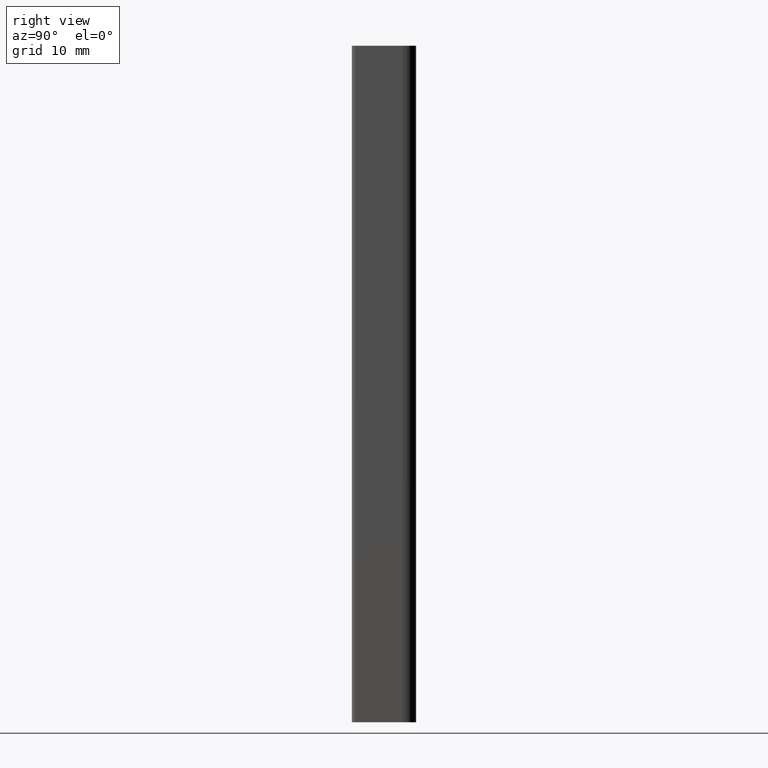
[diagram: clean part render]
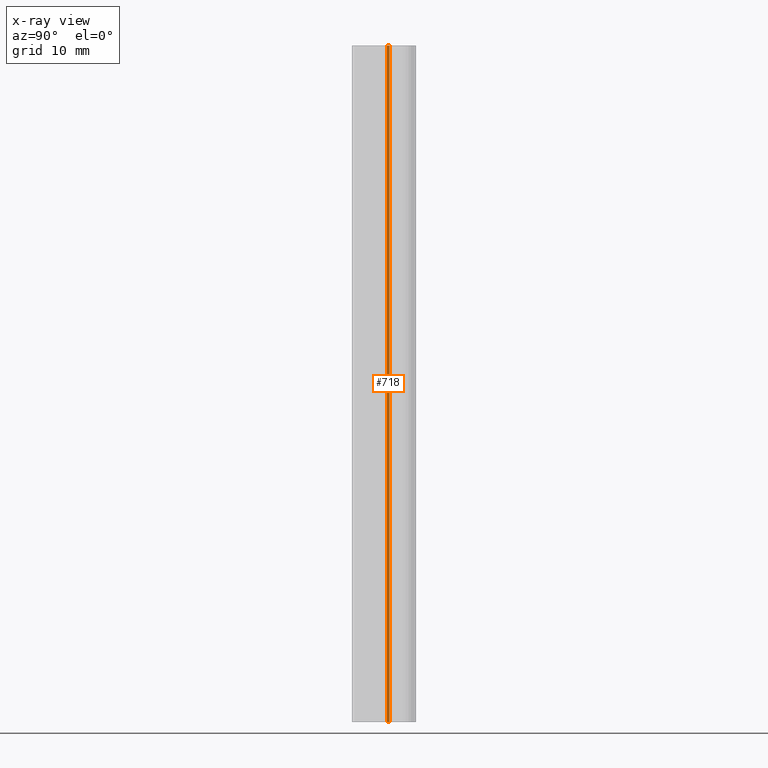
[diagram: x-ray — body ghosted, one internal face saturated and labeled with its STEP entity id]
A machine part, right view, then the same camera in x-ray: the body is ghosted and one INTERNAL B-rep face — a face not visible from any outside direction — is saturated and labeled: STEP entity #718.
In plain terms, the highlighted cylindrical surface (edge-blend (fillet) strip) has radius 0.3 mm, axis along (0, 0, 1).
Its self-contained STEP definition (entity closure, byte-faithful):
#52=FACE_OUTER_BOUND('',#90,.T.);
#90=EDGE_LOOP('',(#543,#544,#545,#546));
#143=LINE('',#1177,#207);
#145=LINE('',#1183,#209);
#207=VECTOR('',#951,100.);
#209=VECTOR('',#957,100.);
#261=CIRCLE('',#785,0.299999999999853);
#262=CIRCLE('',#786,0.299999999999853);
#321=VERTEX_POINT('',#1174);
#322=VERTEX_POINT('',#1176);
#323=VERTEX_POINT('',#1180);
#324=VERTEX_POINT('',#1182);
#413=EDGE_CURVE('',#321,#322,#143,.T.);
#415=EDGE_CURVE('',#323,#321,#261,.T.);
#416=EDGE_CURVE('',#323,#324,#145,.T.);
#417=EDGE_CURVE('',#322,#324,#262,.T.);
#543=ORIENTED_EDGE('',*,*,#415,.F.);
#544=ORIENTED_EDGE('',*,*,#416,.T.);
#545=ORIENTED_EDGE('',*,*,#417,.F.);
#546=ORIENTED_EDGE('',*,*,#413,.F.);
#688=CYLINDRICAL_SURFACE('',#784,0.299999999999853);
#718=ADVANCED_FACE('',(#52),#688,.T.);
#784=AXIS2_PLACEMENT_3D('',#1179,#953,#954);
#785=AXIS2_PLACEMENT_3D('',#1181,#955,#956);
#786=AXIS2_PLACEMENT_3D('',#1184,#958,#959);
#951=DIRECTION('',(0.,0.,-1.));
#953=DIRECTION('center_axis',(0.,0.,1.));
#954=DIRECTION('ref_axis',(0.658163185457281,-0.752875302629011,0.));
#955=DIRECTION('center_axis',(0.,0.,1.));
#956=DIRECTION('ref_axis',(0.658163185457281,-0.752875302629011,0.));
#957=DIRECTION('',(0.,0.,-1.));
#958=DIRECTION('center_axis',(0.,0.,-1.));
#959=DIRECTION('ref_axis',(0.658163185457281,-0.752875302629011,0.));
#1174=CARTESIAN_POINT('',(-16.2396546836842,-4.3169567190468,100.));
#1176=CARTESIAN_POINT('',(-16.2396546836842,-4.3169567190468,0.));
#1177=CARTESIAN_POINT('',(-16.2396546836842,-4.3169567190468,0.));
#1179=CARTESIAN_POINT('Origin',(-15.9798470625489,-4.16695671904703,0.));
#1180=CARTESIAN_POINT('',(-16.177296018186,-3.94109412825844,100.));
#1181=CARTESIAN_POINT('Origin',(-15.9798470625489,-4.16695671904703,100.));
#1182=CARTESIAN_POINT('',(-16.177296018186,-3.94109412825844,0.));
#1183=CARTESIAN_POINT('',(-16.177296018186,-3.94109412825844,0.));
#1184=CARTESIAN_POINT('Origin',(-15.9798470625489,-4.16695671904703,0.));